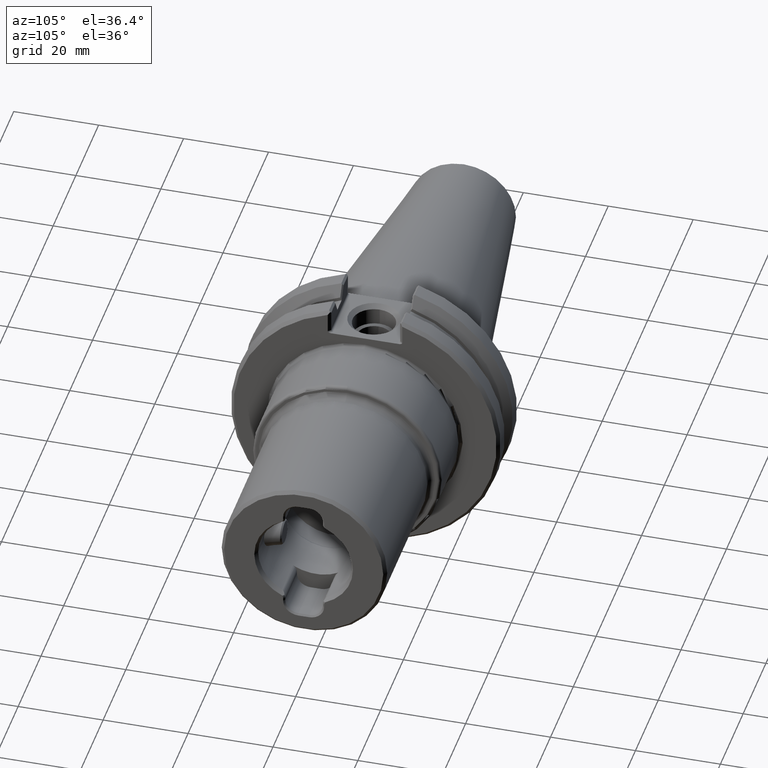
[diagram: clean part render]
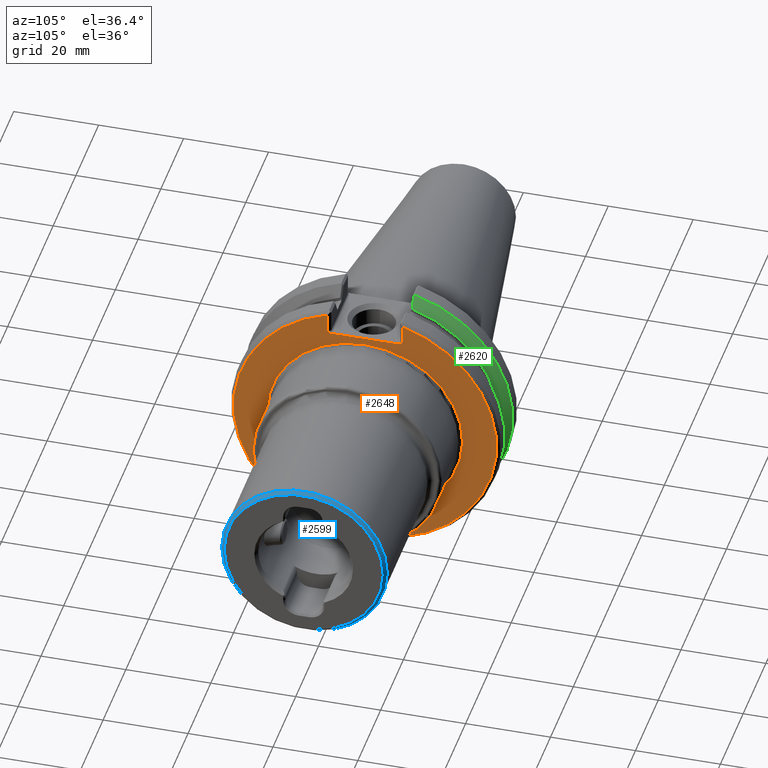
[diagram: same view with three faces highlighted in distinct colors, each labeled with its STEP entity id]
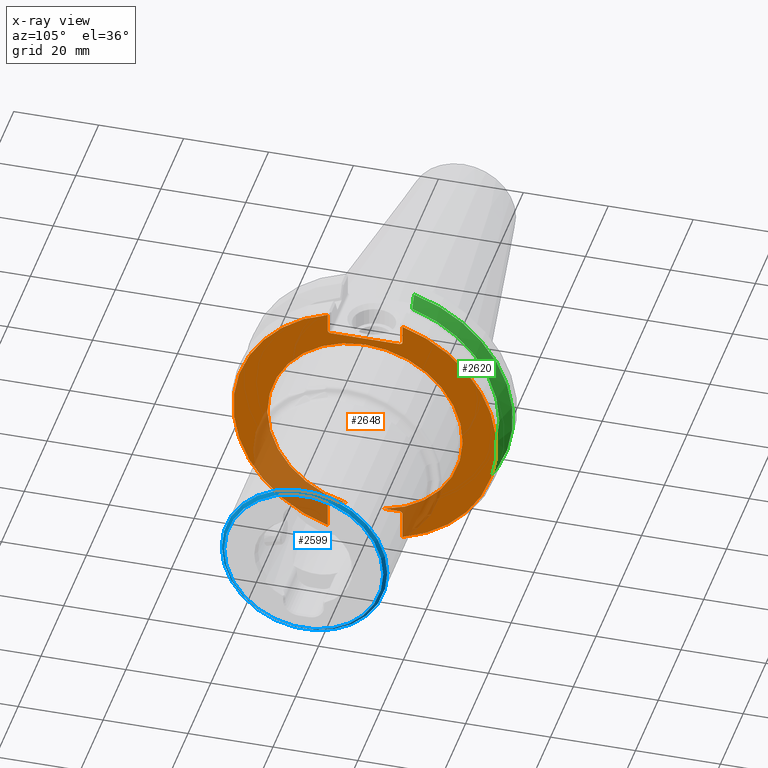
[diagram: x-ray of the same camera — body ghosted, the three highlighted faces saturated]
A machine part, auxiliary view with three faces highlighted in distinct colors.
The next image is the same camera in x-ray (body ghosted, the three faces saturated) — at least one of them is partly hidden behind the body in this view.
Their STEP definitions:

[orange] entity #2648 — the highlighted planar face has unit normal (1, 0, 0).
#28=ELLIPSE('',#2913,0.0282842712474619,0.02);
#29=ELLIPSE('',#2917,0.0282842712474619,0.02);
#36=ELLIPSE('',#2931,0.0282842712474619,0.02);
#37=ELLIPSE('',#2935,0.028284271247462,0.02);
#171=PLANE('',#2960);
#299=LINE('',#5538,#475);
#306=LINE('',#5567,#482);
#315=LINE('',#5602,#491);
#322=LINE('',#5631,#498);
#327=LINE('',#5654,#503);
#330=LINE('',#5675,#506);
#331=LINE('',#5677,#507);
#475=VECTOR('',#3463,0.393700787401575);
#482=VECTOR('',#3486,0.393700787401575);
#491=VECTOR('',#3515,0.393700787401575);
#498=VECTOR('',#3538,0.393700787401575);
#503=VECTOR('',#3561,0.393700787401575);
#506=VECTOR('',#3584,0.393700787401575);
#507=VECTOR('',#3587,0.393700787401575);
#680=FACE_OUTER_BOUND('',#831,.T.);
#831=EDGE_LOOP('',(#2262,#2263,#2264,#2265,#2266,#2267,#2268,#2269,#2270,
#2271,#2272,#2273,#2274,#2275,#2276));
#883=CIRCLE('',#2772,0.905);
#888=CIRCLE('',#2777,0.905);
#966=CIRCLE('',#2958,1.22);
#968=CIRCLE('',#2961,1.22);
#1066=VERTEX_POINT('',#3830);
#1067=VERTEX_POINT('',#3831);
#1068=VERTEX_POINT('',#3843);
#1233=VERTEX_POINT('',#5525);
#1234=VERTEX_POINT('',#5527);
#1236=VERTEX_POINT('',#5537);
#1237=VERTEX_POINT('',#5543);
#1238=VERTEX_POINT('',#5545);
#1244=VERTEX_POINT('',#5563);
#1250=VERTEX_POINT('',#5587);
#1251=VERTEX_POINT('',#5589);
#1254=VERTEX_POINT('',#5601);
#1255=VERTEX_POINT('',#5607);
#1256=VERTEX_POINT('',#5608);
#1262=VERTEX_POINT('',#5627);
#1333=EDGE_CURVE('',#1066,#1068,#883,.T.);
#1338=EDGE_CURVE('',#1068,#1067,#888,.T.);
#1570=EDGE_CURVE('',#1233,#1234,#28,.T.);
#1574=EDGE_CURVE('',#1234,#1236,#299,.T.);
#1577=EDGE_CURVE('',#1237,#1238,#29,.T.);
#1587=EDGE_CURVE('',#1244,#1237,#306,.T.);
#1597=EDGE_CURVE('',#1250,#1251,#36,.T.);
#1602=EDGE_CURVE('',#1251,#1254,#315,.T.);
#1604=EDGE_CURVE('',#1255,#1256,#37,.T.);
#1615=EDGE_CURVE('',#1262,#1255,#322,.T.);
#1626=EDGE_CURVE('',#1233,#1238,#327,.T.);
#1632=EDGE_CURVE('',#1254,#1244,#966,.T.);
#1635=EDGE_CURVE('',#1066,#1256,#330,.T.);
#1636=EDGE_CURVE('',#1236,#1262,#968,.T.);
#1637=EDGE_CURVE('',#1250,#1067,#331,.T.);
#2262=ORIENTED_EDGE('',*,*,#1333,.F.);
#2263=ORIENTED_EDGE('',*,*,#1635,.T.);
#2264=ORIENTED_EDGE('',*,*,#1604,.F.);
#2265=ORIENTED_EDGE('',*,*,#1615,.F.);
#2266=ORIENTED_EDGE('',*,*,#1636,.F.);
#2267=ORIENTED_EDGE('',*,*,#1574,.F.);
#2268=ORIENTED_EDGE('',*,*,#1570,.F.);
#2269=ORIENTED_EDGE('',*,*,#1626,.T.);
#2270=ORIENTED_EDGE('',*,*,#1577,.F.);
#2271=ORIENTED_EDGE('',*,*,#1587,.F.);
#2272=ORIENTED_EDGE('',*,*,#1632,.F.);
#2273=ORIENTED_EDGE('',*,*,#1602,.F.);
#2274=ORIENTED_EDGE('',*,*,#1597,.F.);
#2275=ORIENTED_EDGE('',*,*,#1637,.T.);
#2276=ORIENTED_EDGE('',*,*,#1338,.F.);
#2648=ADVANCED_FACE('',(#680),#171,.T.);
#2772=AXIS2_PLACEMENT_3D('',#3844,#3069,#3070);
#2777=AXIS2_PLACEMENT_3D('',#3852,#3079,#3080);
#2913=AXIS2_PLACEMENT_3D('',#5528,#3455,#3456);
#2917=AXIS2_PLACEMENT_3D('',#5546,#3467,#3468);
#2931=AXIS2_PLACEMENT_3D('',#5590,#3506,#3507);
#2935=AXIS2_PLACEMENT_3D('',#5609,#3518,#3519);
#2958=AXIS2_PLACEMENT_3D('',#5668,#3578,#3579);
#2960=AXIS2_PLACEMENT_3D('',#5674,#3582,#3583);
#2961=AXIS2_PLACEMENT_3D('',#5676,#3585,#3586);
#3069=DIRECTION('center_axis',(1.,1.16523256636576E-36,0.));
#3070=DIRECTION('ref_axis',(1.16523256636576E-36,-1.,1.22464679914735E-16));
#3079=DIRECTION('center_axis',(1.,1.16523256636576E-36,0.));
#3080=DIRECTION('ref_axis',(1.16523256636576E-36,-1.,1.22464679914735E-16));
#3455=DIRECTION('center_axis',(1.,1.16523256636576E-36,0.));
#3456=DIRECTION('ref_axis',(0.,1.,1.44878118111815E-16));
#3463=DIRECTION('',(0.,0.,1.));
#3467=DIRECTION('center_axis',(1.,1.16523256636576E-36,0.));
#3468=DIRECTION('ref_axis',(0.,-1.,-1.93170824149086E-16));
#3486=DIRECTION('',(0.,0.,-1.));
#3506=DIRECTION('center_axis',(1.,1.16523256636576E-36,0.));
#3507=DIRECTION('ref_axis',(0.,-1.,1.93170824149087E-16));
#3515=DIRECTION('',(0.,0.,-1.));
#3518=DIRECTION('center_axis',(1.,1.16523256636576E-36,0.));
#3519=DIRECTION('ref_axis',(0.,1.,-4.82927060372715E-17));
#3538=DIRECTION('',(0.,0.,1.));
#3561=DIRECTION('',(1.16523256636576E-36,-1.,-3.67894043826846E-32));
#3578=DIRECTION('center_axis',(-1.,-1.16523256636576E-36,0.));
#3579=DIRECTION('ref_axis',(0.,-1.,0.));
#3582=DIRECTION('center_axis',(1.,1.16523256636576E-36,0.));
#3583=DIRECTION('ref_axis',(0.,0.,-1.));
#3584=DIRECTION('',(-1.16523256636576E-36,1.,0.));
#3585=DIRECTION('center_axis',(-1.,-1.16523256636576E-36,0.));
#3586=DIRECTION('ref_axis',(0.,1.,0.));
#3587=DIRECTION('',(-1.16523256636576E-36,1.,0.));
#3830=CARTESIAN_POINT('',(0.75,0.17458808664969,-0.888));
#3831=CARTESIAN_POINT('',(0.75,-0.17458808664969,-0.888));
#3843=CARTESIAN_POINT('',(0.75,-1.10830535322835E-16,0.905));
#3844=CARTESIAN_POINT('Origin',(0.75,-7.34096516810427E-37,0.));
#3852=CARTESIAN_POINT('Origin',(0.75,-7.34096516810427E-37,0.));
#5525=CARTESIAN_POINT('',(0.75,0.316715728752819,0.972));
#5527=CARTESIAN_POINT('',(0.75,0.345000000000281,0.992));
#5528=CARTESIAN_POINT('Origin',(0.75,0.316715728752819,0.992));
#5537=CARTESIAN_POINT('',(0.75,0.345000000000281,1.17020297384676));
#5538=CARTESIAN_POINT('',(0.75,0.345000000000281,0.486));
#5543=CARTESIAN_POINT('',(0.75,-0.344999999999719,0.992));
#5545=CARTESIAN_POINT('',(0.75,-0.316715728752257,0.972));
#5546=CARTESIAN_POINT('Origin',(0.75,-0.316715728752257,0.992));
#5563=CARTESIAN_POINT('',(0.75,-0.344999999999719,1.17020297384693));
#5567=CARTESIAN_POINT('',(0.75,-0.344999999999719,0.486));
#5587=CARTESIAN_POINT('',(0.75,-0.316715728752198,-0.888));
#5589=CARTESIAN_POINT('',(0.75,-0.34499999999966,-0.908));
#5590=CARTESIAN_POINT('Origin',(0.75,-0.316715728752198,-0.908));
#5601=CARTESIAN_POINT('',(0.75,-0.34499999999966,-1.17020297384695));
#5602=CARTESIAN_POINT('',(0.75,-0.34499999999966,-0.444));
#5607=CARTESIAN_POINT('',(0.75,0.34500000000034,-0.908));
#5608=CARTESIAN_POINT('',(0.75,0.316715728752878,-0.888));
#5609=CARTESIAN_POINT('Origin',(0.75,0.316715728752878,-0.908));
#5627=CARTESIAN_POINT('',(0.75,0.34500000000034,-1.17020297384674));
#5631=CARTESIAN_POINT('',(0.75,0.34500000000034,-0.444));
#5654=CARTESIAN_POINT('',(0.75,0.53125000000014,0.972));
#5668=CARTESIAN_POINT('Origin',(0.75,-7.34096516810427E-37,0.));
#5674=CARTESIAN_POINT('Origin',(0.75,1.0625,0.));
#5675=CARTESIAN_POINT('',(0.75,0.531250000000153,-0.888));
#5676=CARTESIAN_POINT('Origin',(0.75,-7.34096516810427E-37,0.));
#5677=CARTESIAN_POINT('',(0.75,0.531250000000153,-0.888));

[blue] entity #2599 — the highlighted conical surface has half-angle 45 deg.
#105=CONICAL_SURFACE('',#2885,0.75275,0.785398163397448);
#250=LINE('',#4243,#426);
#426=VECTOR('',#3354,0.75275);
#631=FACE_OUTER_BOUND('',#780,.T.);
#780=EDGE_LOOP('',(#2004,#2005,#2006,#2007,#2008,#2009));
#908=CIRCLE('',#2809,0.738);
#909=CIRCLE('',#2810,0.738);
#948=CIRCLE('',#2883,0.7675);
#949=CIRCLE('',#2884,0.7675);
#1100=VERTEX_POINT('',#3963);
#1101=VERTEX_POINT('',#3964);
#1156=VERTEX_POINT('',#4236);
#1157=VERTEX_POINT('',#4237);
#1376=EDGE_CURVE('',#1100,#1101,#908,.T.);
#1377=EDGE_CURVE('',#1101,#1100,#909,.T.);
#1466=EDGE_CURVE('',#1156,#1157,#948,.T.);
#1467=EDGE_CURVE('',#1157,#1156,#949,.T.);
#1470=EDGE_CURVE('',#1101,#1157,#250,.T.);
#2004=ORIENTED_EDGE('',*,*,#1376,.F.);
#2005=ORIENTED_EDGE('',*,*,#1377,.F.);
#2006=ORIENTED_EDGE('',*,*,#1470,.T.);
#2007=ORIENTED_EDGE('',*,*,#1467,.T.);
#2008=ORIENTED_EDGE('',*,*,#1466,.T.);
#2009=ORIENTED_EDGE('',*,*,#1470,.F.);
#2599=ADVANCED_FACE('',(#631),#105,.T.);
#2809=AXIS2_PLACEMENT_3D('',#3965,#3156,#3157);
#2810=AXIS2_PLACEMENT_3D('',#3966,#3158,#3159);
#2883=AXIS2_PLACEMENT_3D('',#4238,#3346,#3347);
#2884=AXIS2_PLACEMENT_3D('',#4239,#3348,#3349);
#2885=AXIS2_PLACEMENT_3D('',#4242,#3352,#3353);
#3156=DIRECTION('center_axis',(1.,0.,0.));
#3157=DIRECTION('ref_axis',(0.,1.,0.));
#3158=DIRECTION('center_axis',(1.,0.,0.));
#3159=DIRECTION('ref_axis',(0.,1.,0.));
#3346=DIRECTION('center_axis',(1.,0.,0.));
#3347=DIRECTION('ref_axis',(0.,1.,0.));
#3348=DIRECTION('center_axis',(1.,0.,0.));
#3349=DIRECTION('ref_axis',(0.,1.,0.));
#3352=DIRECTION('center_axis',(-1.,0.,0.));
#3353=DIRECTION('ref_axis',(0.,1.,0.));
#3354=DIRECTION('',(-0.707106781186548,-0.707106781186548,-8.65956056235493E-17));
#3963=CARTESIAN_POINT('',(2.874,0.738,0.));
#3964=CARTESIAN_POINT('',(2.874,-0.738,-9.03789337770747E-17));
#3965=CARTESIAN_POINT('Origin',(2.874,0.,0.));
#3966=CARTESIAN_POINT('Origin',(2.874,0.,0.));
#4236=CARTESIAN_POINT('',(2.8445,0.7675,0.));
#4237=CARTESIAN_POINT('',(2.8445,-0.7675,-9.39916418345594E-17));
#4238=CARTESIAN_POINT('Origin',(2.8445,0.,0.));
#4239=CARTESIAN_POINT('Origin',(2.8445,0.,0.));
#4242=CARTESIAN_POINT('Origin',(2.85925,0.,0.));
#4243=CARTESIAN_POINT('',(2.85925,-0.75275,-9.2185287805817E-17));

[green] entity #2620 — the highlighted conical surface has half-angle 60 deg.
#44=(
BOUNDED_CURVE()
B_SPLINE_CURVE(2,(#4889,#4890,#4891),.UNSPECIFIED.,.F.,.F.)
B_SPLINE_CURVE_WITH_KNOTS((3,3),(0.,0.0246703220923864),.UNSPECIFIED.)
CURVE()
GEOMETRIC_REPRESENTATION_ITEM()
RATIONAL_B_SPLINE_CURVE((1.,1.00009739248591,1.00018150703381))
REPRESENTATION_ITEM('')
);
#49=(
BOUNDED_CURVE()
B_SPLINE_CURVE(2,(#5499,#5500,#5501),.UNSPECIFIED.,.F.,.F.)
B_SPLINE_CURVE_WITH_KNOTS((3,3),(0.337238883117573,0.361909205209151),
 .UNSPECIFIED.)
CURVE()
GEOMETRIC_REPRESENTATION_ITEM()
RATIONAL_B_SPLINE_CURVE((1.00018150703373,1.00009739248587,1.))
REPRESENTATION_ITEM('')
);
#106=CONICAL_SURFACE('',#2904,1.28590991798628,1.04719755119643);
#652=FACE_OUTER_BOUND('',#801,.T.);
#801=EDGE_LOOP('',(#2130,#2131,#2132,#2133,#2134,#2135));
#956=CIRCLE('',#2905,1.25);
#957=CIRCLE('',#2906,1.14031983597202);
#1048=B_SPLINE_CURVE_WITH_KNOTS('',3,(#4853,#4854,#4855,#4856,#4857,#4858,
#4859,#4860,#4861,#4862,#4863,#4864,#4865,#4866,#4867,#4868,#4869,#4870,
#4871,#4872,#4873),.UNSPECIFIED.,.F.,.F.,(4,1,2,2,2,1,2,2,2,2,1,4),(-0.298992862371114,
-0.258089161816137,-0.235846833356621,-0.213742413071363,-0.19177457810875,
-0.148243453986094,-0.0839390099499167,-0.0627638019617158,-0.0417163615481336,
-0.0207954892593392,0.,0.00870150624894359),.UNSPECIFIED.);
#1063=B_SPLINE_CURVE_WITH_KNOTS('',3,(#5476,#5477,#5478,#5479,#5480,#5481,
#5482,#5483,#5484,#5485,#5486,#5487,#5488,#5489,#5490,#5491,#5492,#5493,
#5494,#5495,#5496),.UNSPECIFIED.,.F.,.F.,(4,1,2,2,2,2,1,2,2,2,1,4),(-0.266790668116605,
-0.258089161816177,-0.237293672556562,-0.21637280026755,-0.195325359853805,
-0.174150151865493,-0.109845707829269,-0.066314583706806,-0.0443467487443516,
-0.0222423284592883,0.,0.0409037005549361),.UNSPECIFIED.);
#1193=VERTEX_POINT('',#4845);
#1194=VERTEX_POINT('',#4852);
#1197=VERTEX_POINT('',#4887);
#1224=VERTEX_POINT('',#5462);
#1225=VERTEX_POINT('',#5469);
#1226=VERTEX_POINT('',#5498);
#1513=EDGE_CURVE('',#1193,#1194,#1048,.T.);
#1518=EDGE_CURVE('',#1197,#1193,#44,.T.);
#1556=EDGE_CURVE('',#1225,#1224,#1063,.T.);
#1557=EDGE_CURVE('',#1224,#1226,#49,.T.);
#1561=EDGE_CURVE('',#1226,#1197,#956,.T.);
#1562=EDGE_CURVE('',#1225,#1194,#957,.T.);
#2130=ORIENTED_EDGE('',*,*,#1513,.F.);
#2131=ORIENTED_EDGE('',*,*,#1518,.F.);
#2132=ORIENTED_EDGE('',*,*,#1561,.F.);
#2133=ORIENTED_EDGE('',*,*,#1557,.F.);
#2134=ORIENTED_EDGE('',*,*,#1556,.F.);
#2135=ORIENTED_EDGE('',*,*,#1562,.T.);
#2620=ADVANCED_FACE('',(#652),#106,.T.);
#2904=AXIS2_PLACEMENT_3D('',#5509,#3433,#3434);
#2905=AXIS2_PLACEMENT_3D('',#5510,#3435,#3436);
#2906=AXIS2_PLACEMENT_3D('',#5511,#3437,#3438);
#3433=DIRECTION('center_axis',(-1.,1.62451355720802E-13,0.));
#3434=DIRECTION('ref_axis',(1.62482077846342E-13,1.,0.));
#3435=DIRECTION('center_axis',(-1.,-1.16523256636576E-36,0.));
#3436=DIRECTION('ref_axis',(1.62451355720802E-13,1.,0.));
#3437=DIRECTION('center_axis',(-1.,1.62451355720802E-13,0.));
#3438=DIRECTION('ref_axis',(1.62482077846342E-13,1.,0.));
#4845=CARTESIAN_POINT('',(0.304097963663893,0.333205733277183,-1.19655338963433));
#4852=CARTESIAN_POINT('',(0.362850000003276,0.333149715436346,-1.09056893198394));
#4853=CARTESIAN_POINT('Ctrl Pts',(0.304097963663892,0.333205733277183,-1.19655338963433));
#4854=CARTESIAN_POINT('Ctrl Pts',(0.306708244172747,0.333202787555852,-1.19186104554486));
#4855=CARTESIAN_POINT('Ctrl Pts',(0.310736636168211,0.333198327842721,-1.18461637151506));
#4856=CARTESIAN_POINT('Ctrl Pts',(0.314762970597206,0.333194007938161,-1.17737048354769));
#4857=CARTESIAN_POINT('Ctrl Pts',(0.317590101643392,0.333191009293547,-1.1722814715702));
#4858=CARTESIAN_POINT('Ctrl Pts',(0.318999014463588,0.333189532057459,-1.1697447268351));
#4859=CARTESIAN_POINT('Ctrl Pts',(0.321807612567062,0.333186622043149,-1.16468660436768));
#4860=CARTESIAN_POINT('Ctrl Pts',(0.323207301074715,0.333185189046667,-1.1621652285341));
#4861=CARTESIAN_POINT('Ctrl Pts',(0.32737980582352,0.333180969511326,-1.15464707005194));
#4862=CARTESIAN_POINT('Ctrl Pts',(0.334246734441135,0.333174195712295,-1.14226788346378));
#4863=CARTESIAN_POINT('Ctrl Pts',(0.341107080158508,0.333167865321464,-1.12988481558171));
#4864=CARTESIAN_POINT('Ctrl Pts',(0.346541884738035,0.333163067656877,-1.12006700355439));
#4865=CARTESIAN_POINT('Ctrl Pts',(0.347887938055528,0.333161897149624,-1.11763475531997));
#4866=CARTESIAN_POINT('Ctrl Pts',(0.350571377575134,0.333159599648509,-1.11278461344051));
#4867=CARTESIAN_POINT('Ctrl Pts',(0.351908767053314,0.333158472435361,-1.11036672172891));
#4868=CARTESIAN_POINT('Ctrl Pts',(0.354574954851351,0.333156261404853,-1.10554515500566));
#4869=CARTESIAN_POINT('Ctrl Pts',(0.355903756463973,0.333155177367751,-1.10314148193007));
#4870=CARTESIAN_POINT('Ctrl Pts',(0.358552843536119,0.333153052572398,-1.09834821630014));
#4871=CARTESIAN_POINT('Ctrl Pts',(0.3604255837319,0.333151576022022,-1.09495874351897));
#4872=CARTESIAN_POINT('Ctrl Pts',(0.362297763148779,0.33315013674627,-1.09156894052748));
#4873=CARTESIAN_POINT('Ctrl Pts',(0.362850000065217,0.333149715432239,-1.09056893201958));
#4887=CARTESIAN_POINT('',(0.299526127773263,0.339628138321803,-1.20297661143518));
#4889=CARTESIAN_POINT('Ctrl Pts',(0.299526127772764,0.339628138322504,-1.2029766114359));
#4890=CARTESIAN_POINT('Ctrl Pts',(0.301821602854467,0.336406732121921,-1.19975479555956));
#4891=CARTESIAN_POINT('Ctrl Pts',(0.304097963663893,0.333205733277183,-1.19655338963433));
#5462=CARTESIAN_POINT('',(0.304097963663892,0.333205733277185,1.19655338963434));
#5469=CARTESIAN_POINT('',(0.362850000018371,0.333149715440153,1.09056893196911));
#5476=CARTESIAN_POINT('Ctrl Pts',(0.362850000075018,0.333149715432227,1.09056893200182));
#5477=CARTESIAN_POINT('Ctrl Pts',(0.362297763155313,0.33315013674626,1.09156894051564));
#5478=CARTESIAN_POINT('Ctrl Pts',(0.360425583735148,0.333151576022015,1.09495874351308));
#5479=CARTESIAN_POINT('Ctrl Pts',(0.358552843536082,0.333153052572393,1.09834821630019));
#5480=CARTESIAN_POINT('Ctrl Pts',(0.355903756463904,0.333155177367747,1.10314148193017));
#5481=CARTESIAN_POINT('Ctrl Pts',(0.354574954851268,0.333156261404849,1.1055451550058));
#5482=CARTESIAN_POINT('Ctrl Pts',(0.351908767053207,0.333158472435358,1.11036672172908));
#5483=CARTESIAN_POINT('Ctrl Pts',(0.350571377575017,0.333159599648506,1.1127846134407));
#5484=CARTESIAN_POINT('Ctrl Pts',(0.347887938055393,0.333161897149622,1.1176347553202));
#5485=CARTESIAN_POINT('Ctrl Pts',(0.346541884737893,0.333163067656875,1.12006700355463));
#5486=CARTESIAN_POINT('Ctrl Pts',(0.341107080158356,0.333167865321462,1.12988481558197));
#5487=CARTESIAN_POINT('Ctrl Pts',(0.334246734440993,0.333174195712291,1.14226788346402));
#5488=CARTESIAN_POINT('Ctrl Pts',(0.327379805823388,0.333180969511322,1.15464707005217));
#5489=CARTESIAN_POINT('Ctrl Pts',(0.323207301074605,0.333185189046664,1.16216522853429));
#5490=CARTESIAN_POINT('Ctrl Pts',(0.321807612566963,0.333186622043146,1.16468660436785));
#5491=CARTESIAN_POINT('Ctrl Pts',(0.318999014463511,0.333189532057456,1.16974472683524));
#5492=CARTESIAN_POINT('Ctrl Pts',(0.317590101643328,0.333191009293545,1.17228147157031));
#5493=CARTESIAN_POINT('Ctrl Pts',(0.314762970597168,0.333194007938158,1.17737048354776));
#5494=CARTESIAN_POINT('Ctrl Pts',(0.310736636168191,0.333198327842719,1.18461637151509));
#5495=CARTESIAN_POINT('Ctrl Pts',(0.306708244172744,0.333202787555853,1.19186104554486));
#5496=CARTESIAN_POINT('Ctrl Pts',(0.304097963663892,0.333205733277185,1.19655338963434));
#5498=CARTESIAN_POINT('',(0.299526127773263,0.339628138321787,1.20297661143518));
#5499=CARTESIAN_POINT('Ctrl Pts',(0.304097963663892,0.333205733277185,1.19655338963434));
#5500=CARTESIAN_POINT('Ctrl Pts',(0.301821602854538,0.33640673212182,1.19975479555946));
#5501=CARTESIAN_POINT('Ctrl Pts',(0.299526127772912,0.339628138322298,1.20297661143569));
#5509=CARTESIAN_POINT('Origin',(0.2787935269573,-2.63543782831294E-13,0.));
#5510=CARTESIAN_POINT('Origin',(0.299526127773263,-1.25900334302591E-36,
0.));
#5511=CARTESIAN_POINT('Origin',(0.362849999999605,-2.77198870834126E-13,
0.));